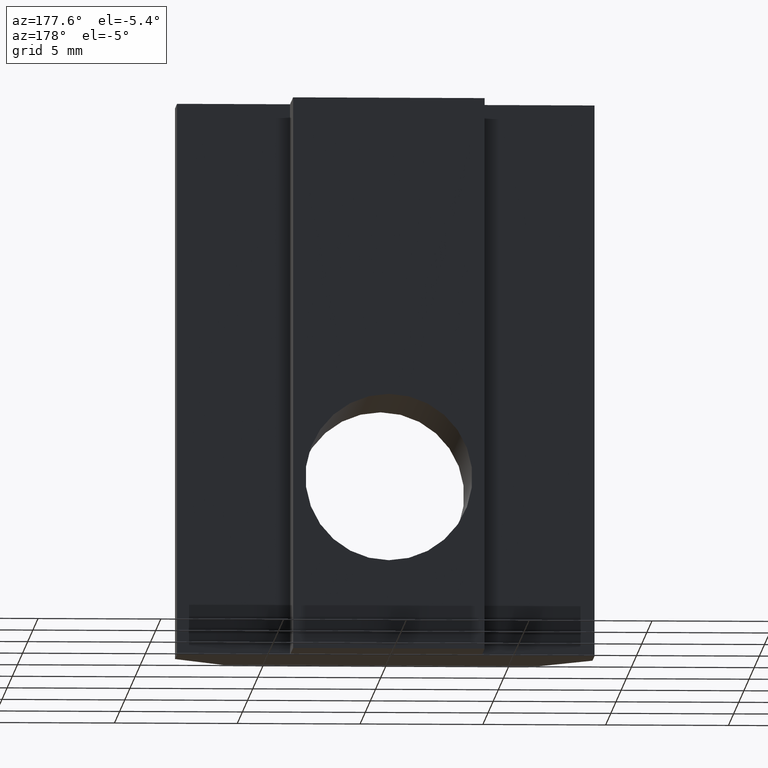
[diagram: clean part render]
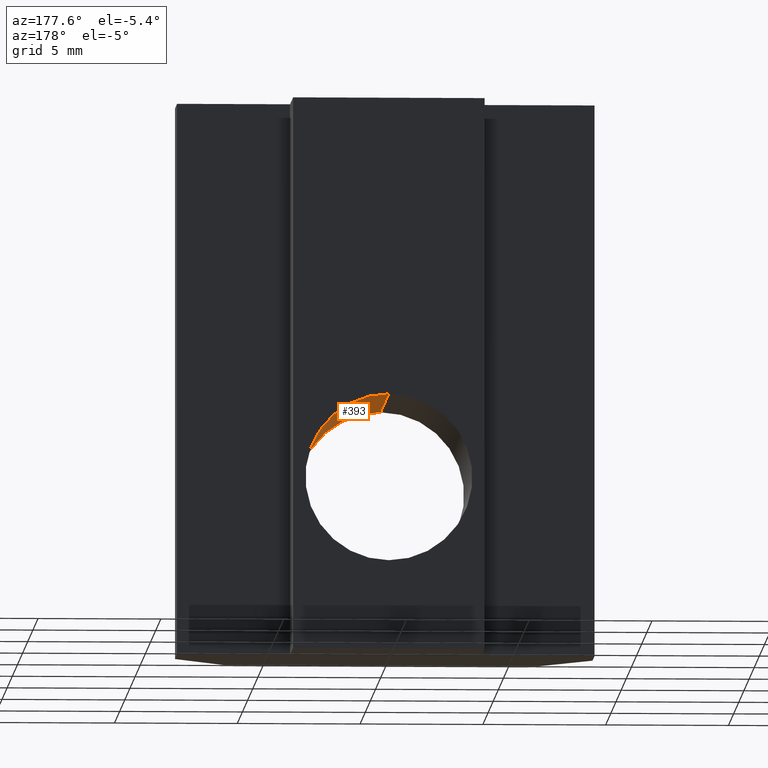
[diagram: same view with one face highlighted and labeled with its STEP entity id]
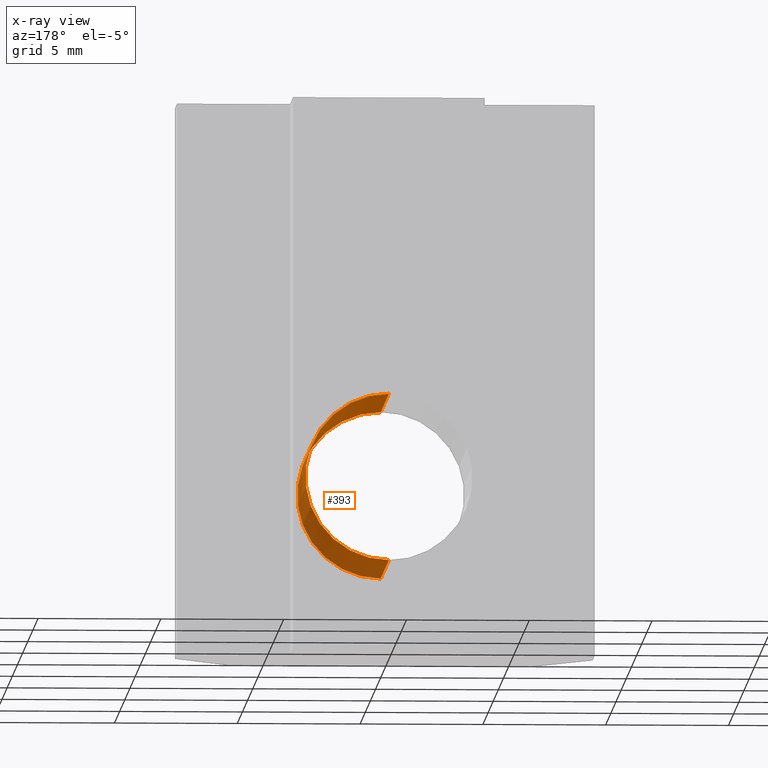
[diagram: x-ray of the same camera — body ghosted, the highlighted face saturated]
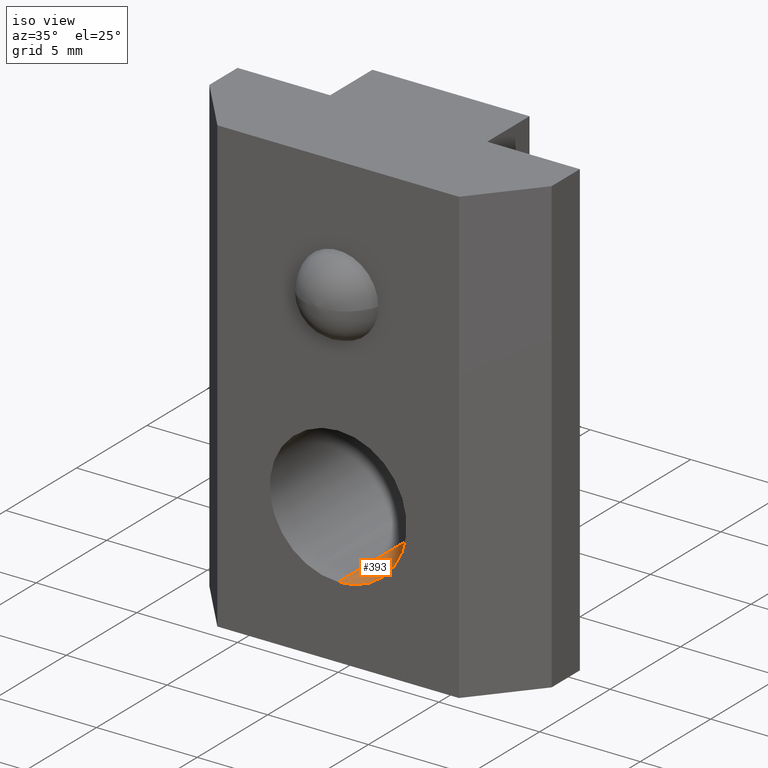
[diagram: same view with one face highlighted and labeled with its STEP entity id]
A machine part, auxiliary view. The second image highlights one B-rep face of the part: STEP entity #393.
The next image is the same camera in x-ray: the body ghosted, the highlighted face saturated — about 41% of this face is hidden behind the body in this view.
A second angle (iso view) of the same face is appended — the face is thin or edge-on in the first view.
In plain terms, the highlighted cylindrical surface (partial cylindrical patch) has radius 3.4 mm, axis along (-0, 1, -0).
Its self-contained STEP definition (entity closure, byte-faithful):
#15 = DIRECTION ( 'NONE',  ( 0.0000000000000000000, 0.0000000000000000000, 1.000000000000000000 ) ) ;
#21 = DIRECTION ( 'NONE',  ( -0.0000000000000000000, 1.000000000000000000, -0.0000000000000000000 ) ) ;
#22 = CARTESIAN_POINT ( 'NONE',  ( -5.204170427930421300E-015, 7.999999999999998200, 7.000000000000000000 ) ) ;
#25 = CARTESIAN_POINT ( 'NONE',  ( -5.204170427930421300E-015, 7.999999999999998200, 10.40000000000000000 ) ) ;
#36 = DIRECTION ( 'NONE',  ( 0.0000000000000000000, 0.0000000000000000000, 1.000000000000000000 ) ) ;
#37 = CARTESIAN_POINT ( 'NONE',  ( -5.204170427930421300E-015, 7.999999999999998200, 7.000000000000000000 ) ) ;
#43 = DIRECTION ( 'NONE',  ( -0.0000000000000000000, 1.000000000000000000, -0.0000000000000000000 ) ) ;
#47 = DIRECTION ( 'NONE',  ( 0.0000000000000000000, 0.0000000000000000000, 1.000000000000000000 ) ) ;
#49 = DIRECTION ( 'NONE',  ( -0.0000000000000000000, 1.000000000000000000, -0.0000000000000000000 ) ) ;
#68 = CARTESIAN_POINT ( 'NONE',  ( -5.204170427930421300E-015, -6.938893903907228400E-015, 7.000000000000000000 ) ) ;
#100 = CARTESIAN_POINT ( 'NONE',  ( -4.787790516220321600E-015, 7.999999999999998200, 3.600000000000001400 ) ) ;
#101 = DIRECTION ( 'NONE',  ( -0.0000000000000000000, 1.000000000000000000, -0.0000000000000000000 ) ) ;
#109 = DIRECTION ( 'NONE',  ( -0.0000000000000000000, 1.000000000000000000, -0.0000000000000000000 ) ) ;
#143 = CIRCLE ( 'NONE', #284, 3.399999999999997700 ) ;
#158 = LINE ( 'NONE', #100, #159 ) ;
#159 = VECTOR ( 'NONE', #49, 1000.000000000000000 ) ;
#224 = ORIENTED_EDGE ( 'NONE', *, *, #235, .T. ) ;
#225 = ORIENTED_EDGE ( 'NONE', *, *, #306, .F. ) ;
#226 = ORIENTED_EDGE ( 'NONE', *, *, #280, .F. ) ;
#227 = ORIENTED_EDGE ( 'NONE', *, *, #319, .T. ) ;
#235 = EDGE_CURVE ( 'NONE', #504, #503, #382, .T. ) ;
#260 = AXIS2_PLACEMENT_3D ( 'NONE', #37, #101, #36 ) ;
#280 = EDGE_CURVE ( 'NONE', #504, #499, #143, .T. ) ;
#284 = AXIS2_PLACEMENT_3D ( 'NONE', #68, #21, #15 ) ;
#289 = AXIS2_PLACEMENT_3D ( 'NONE', #22, #109, #47 ) ;
#306 = EDGE_CURVE ( 'NONE', #499, #491, #158, .T. ) ;
#319 = EDGE_CURVE ( 'NONE', #503, #491, #530, .T. ) ;
#363 = EDGE_LOOP ( 'NONE', ( #225, #226, #224, #227 ) ) ;
#376 = VECTOR ( 'NONE', #43, 1000.000000000000000 ) ;
#382 = LINE ( 'NONE', #25, #376 ) ;
#393 = ADVANCED_FACE ( 'NONE', ( #536 ), #537, .F. ) ;
#447 = CARTESIAN_POINT ( 'NONE',  ( -5.204170427930421300E-015, -6.938893903907228400E-015, 10.39999999999999900 ) ) ;
#448 = CARTESIAN_POINT ( 'NONE',  ( -4.787790516220321600E-015, 7.999999999999998200, 3.600000000000001000 ) ) ;
#467 = CARTESIAN_POINT ( 'NONE',  ( -4.787790516220321600E-015, -6.938893903907228400E-015, 3.600000000000001900 ) ) ;
#469 = CARTESIAN_POINT ( 'NONE',  ( -5.204170427930421300E-015, 7.999999999999998200, 10.40000000000000000 ) ) ;
#491 = VERTEX_POINT ( 'NONE', #448 ) ;
#499 = VERTEX_POINT ( 'NONE', #467 ) ;
#503 = VERTEX_POINT ( 'NONE', #469 ) ;
#504 = VERTEX_POINT ( 'NONE', #447 ) ;
#530 = CIRCLE ( 'NONE', #289, 3.399999999999999500 ) ;
#536 = FACE_OUTER_BOUND ( 'NONE', #363, .T. ) ;
#537 = CYLINDRICAL_SURFACE ( 'NONE', #260, 3.399999999999999500 ) ;